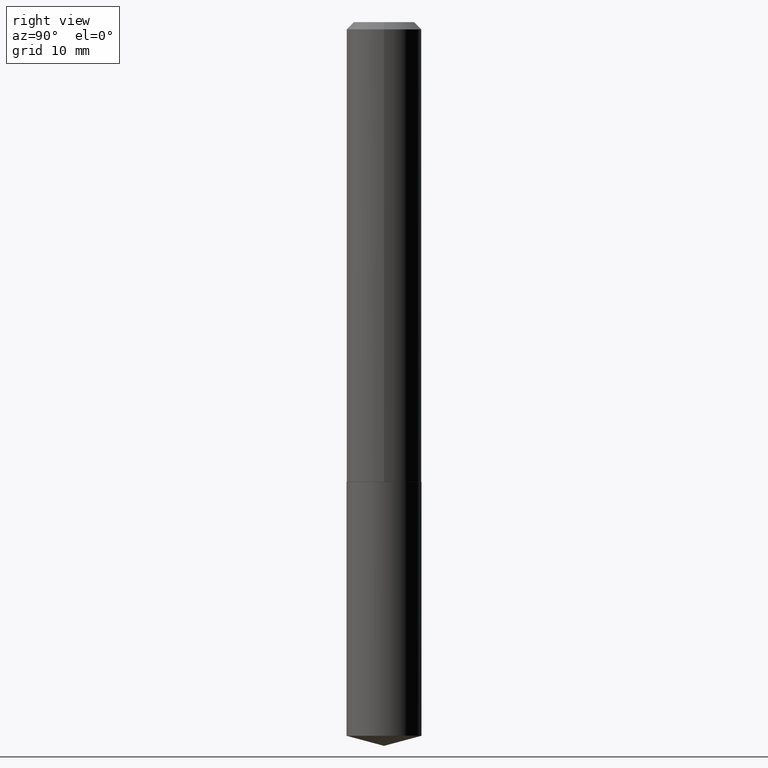
[diagram: clean part render]
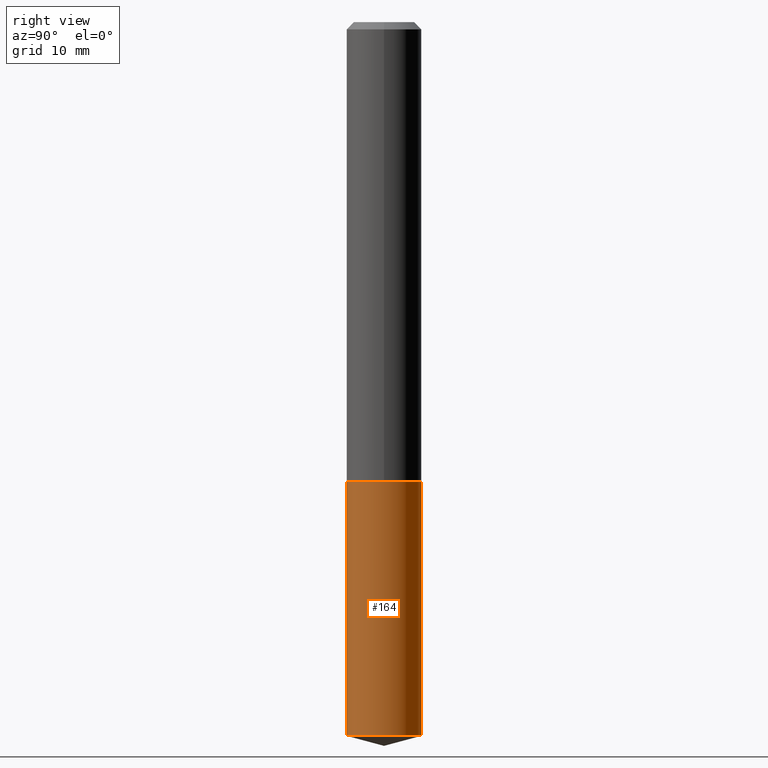
[diagram: same view with one face highlighted and labeled with its STEP entity id]
A machine part, right view. The second image highlights one B-rep face of the part: STEP entity #164.
In plain terms, the highlighted cylindrical surface (partial cylindrical patch) has radius 4.0996 mm, axis along (-0, 0, 1).
Its self-contained STEP definition (entity closure, byte-faithful):
#20 = CYLINDRICAL_SURFACE ( 'NONE', #249, 0.1613999999999999879 ) ;
#21 = VECTOR ( 'NONE', #111, 39.37007874015748143 ) ;
#22 = VERTEX_POINT ( 'NONE', #332 ) ;
#23 = CARTESIAN_POINT ( 'NONE',  ( -1.127050176178487994E-15, -0.1614000000000106461, -3.066953000341617663 ) ) ;
#24 = ORIENTED_EDGE ( 'NONE', *, *, #136, .F. ) ;
#30 = VERTEX_POINT ( 'NONE', #144 ) ;
#37 = AXIS2_PLACEMENT_3D ( 'NONE', #120, #182, #273 ) ;
#82 = EDGE_CURVE ( 'NONE', #199, #22, #325, .T. ) ;
#93 = LINE ( 'NONE', #183, #108 ) ;
#98 = EDGE_CURVE ( 'NONE', #199, #30, #114, .T. ) ;
#108 = VECTOR ( 'NONE', #274, 39.37007874015748143 ) ;
#109 = DIRECTION ( 'NONE',  ( -2.445414552692694796E-29, 3.491559032932239035E-15, 1.000000000000000000 ) ) ;
#111 = DIRECTION ( 'NONE',  ( -2.445414552692694796E-29, 3.491559032932239035E-15, 1.000000000000000000 ) ) ;
#112 = FACE_OUTER_BOUND ( 'NONE', #235, .T. ) ;
#114 = LINE ( 'NONE', #331, #21 ) ;
#120 = CARTESIAN_POINT ( 'NONE',  ( 7.500078720637030197E-29, -1.070829390509313409E-14, -3.066953000341618107 ) ) ;
#130 = CARTESIAN_POINT ( 'NONE',  ( 1.146815975516876556E-15, 0.1613999999999930768, -1.976300000000000390 ) ) ;
#131 = VERTEX_POINT ( 'NONE', #130 ) ;
#136 = EDGE_CURVE ( 'NONE', #30, #131, #313, .T. ) ;
#140 = CARTESIAN_POINT ( 'NONE',  ( 4.832980001663685166E-29, -6.900214569955707952E-15, -1.976299999999999946 ) ) ;
#144 = CARTESIAN_POINT ( 'NONE',  ( -1.127050176178515013E-15, -0.1614000000000068713, -1.976299999999999280 ) ) ;
#153 = AXIS2_PLACEMENT_3D ( 'NONE', #176, #109, #301 ) ;
#164 = ADVANCED_FACE ( 'NONE', ( #112 ), #20, .T. ) ;
#173 = DIRECTION ( 'NONE',  ( -6.982962677686266711E-15, -1.000000000000000000, 3.385189583227092077E-15 ) ) ;
#176 = CARTESIAN_POINT ( 'NONE',  ( 4.832980001663685166E-29, -6.900214569955707952E-15, -1.976299999999999946 ) ) ;
#182 = DIRECTION ( 'NONE',  ( -2.445414552692694796E-29, 3.491559032932239035E-15, 1.000000000000000000 ) ) ;
#183 = CARTESIAN_POINT ( 'NONE',  ( 1.146815975516849537E-15, 0.1613999999999930768, -1.976300000000000390 ) ) ;
#199 = VERTEX_POINT ( 'NONE', #23 ) ;
#205 = DIRECTION ( 'NONE',  ( -2.445414552692694796E-29, 3.491559032932239035E-15, 1.000000000000000000 ) ) ;
#235 = EDGE_LOOP ( 'NONE', ( #243, #262, #24, #352 ) ) ;
#243 = ORIENTED_EDGE ( 'NONE', *, *, #82, .T. ) ;
#249 = AXIS2_PLACEMENT_3D ( 'NONE', #140, #205, #173 ) ;
#262 = ORIENTED_EDGE ( 'NONE', *, *, #385, .T. ) ;
#273 = DIRECTION ( 'NONE',  ( -6.982962677686266711E-15, -1.000000000000000000, 3.385189583227092077E-15 ) ) ;
#274 = DIRECTION ( 'NONE',  ( -2.445414552692694796E-29, 3.491559032932239035E-15, 1.000000000000000000 ) ) ;
#301 = DIRECTION ( 'NONE',  ( -6.982962677686266711E-15, -1.000000000000000000, 3.385189583227092077E-15 ) ) ;
#313 = CIRCLE ( 'NONE', #153, 0.1613999999999999879 ) ;
#325 = CIRCLE ( 'NONE', #37, 0.1613999999999999879 ) ;
#331 = CARTESIAN_POINT ( 'NONE',  ( -1.127050176178515013E-15, -0.1614000000000068713, -1.976299999999999280 ) ) ;
#332 = CARTESIAN_POINT ( 'NONE',  ( 1.146815975516876162E-15, 0.1613999999999892188, -3.066953000341618552 ) ) ;
#352 = ORIENTED_EDGE ( 'NONE', *, *, #98, .F. ) ;
#385 = EDGE_CURVE ( 'NONE', #22, #131, #93, .T. ) ;